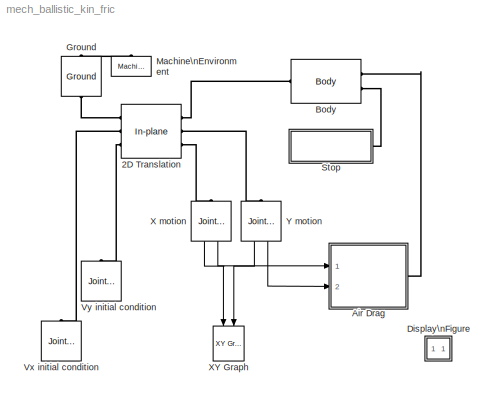
MODEL mech_ballistic_kin_fric
KIND model
BLOCK [Reference] 2D Translation  REF=mblibv1/Joints/In-plane
  ClassName = InplaneJoint
  CutJoint = off
  DialogClass = JointBlock
  LConnTagsString = __newl0|SA1|SA2
  LeftPortType = blob
  MarkAsCut = off
  NumSAPorts = 4
  PhysicalDomain = mechanical
  Ports = [0, 0, 0, 0, 0, 3, 3]
  PrimitiveProps = P1$WORLD$[1 0 0]$prismatic#P2$WORLD$[0 1 0]$prismatic
  Primitives = prismatic_prismatic
  RConnTagsString = __newr0|SA1|SA2
  RightPortType = blob
  SourceBlock = mblibv1/Joints/In-plane
  SourceType = msb
  SubClassName = Unknown
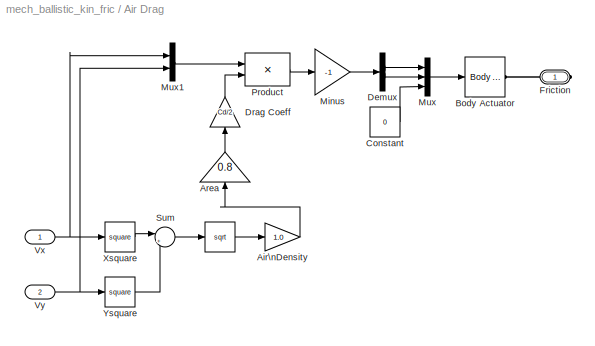
BLOCK [SubSystem] Air Drag
  MaskDescription = Models aerodynamic drag.  The drag coefficient Cd is a mask block parameter.  Cd = 0 corresponds to zero drag.  Cd = 2 corresponds to a sphere.
  MaskEnableString = on
  MaskHelp = Enter aerodynamic drag coefficient Cd.  The block generates a three-vector of air friction as a function of 2D input velocity.
  MaskIconFrame = on
  MaskIconOpaque = on
  MaskIconRotate = none
  MaskIconUnits = autoscale
  MaskInitialization = 0;
  MaskPromptString = Drag Coefficient
  MaskStyleString = edit
  MaskToolTipString = on
  MaskTunableValueString = off
  MaskType = Air friction model
  MaskValueString = 0
  MaskVariables = Cd=@1;
  MaskVisibilityString = on
  MinAlgLoopOccurrences = off
  Ports = [2, 0, 0, 0, 0, 0, 1]
  RTWSystemCode = Auto
  TreatAsAtomicUnit = off
BLOCK [Math] Air Drag/ 
  Operator = sqrt
  Ports = [1, 1]
BLOCK [Gain] Air Drag/Air\nDensity
  Gain = 1.0
BLOCK [Gain] Air Drag/Area
  Gain = 0.8
BLOCK [Reference] Air Drag/Body Actuator  REF=mblibv1/Sensors & \nActuators/Body Actuator
  AccelerationUnits = m/s^2
  ActiveIO = on
  ActuationStyle = Force
  Angle = off
  AngleUnits = deg
  ArcAccelerationUnits = deg/s^2
  ArcVelocityUnits = deg/s
  ClassName = BodyActuatorForceTorque
  CoordPosition = on
  CoordPositionUnits = m
  DialogClass = MechanicalActuatorBlock
  Force = on
  ForceUnits = N
  Opaque = on
  PhysicalDomain = Mechanical
  PortType = blob
  Ports = [1, 0, 0, 0, 0, 0, 1]
  ReferenceFrame = Absolute (World)
  ShowPortLabels = on
  SourceBlock = mblibv1/Sensors & \nActuators/Body Actuator
  SourceType = msb
  Torque = off
  TorqueUnits = N-m
  VelocityUnits = m/s
  Width = 3
BLOCK [Constant] Air Drag/Constant
  Value = 0
BLOCK [Demux] Air Drag/Demux
  Outputs = 2
  Ports = [1, 2]
BLOCK [Gain] Air Drag/Drag Coeff
  Gain = Cd/2
BLOCK [PMIOPort] Air Drag/Friction
  Port = 1
  Side = Right
BLOCK [Gain] Air Drag/Minus
  Gain = -1
BLOCK [Mux] Air Drag/Mux
  DisplayOption = bar
  Inputs = 3
  Ports = [3, 1]
BLOCK [Mux] Air Drag/Mux1
  DisplayOption = bar
  Inputs = 2
  Ports = [2, 1]
BLOCK [Product] Air Drag/Product
  InputSameDT = off
  Ports = [2, 1]
  RndMeth = Floor
BLOCK [Sum] Air Drag/Sum
  IconShape = round
  InputSameDT = off
  Inputs = |++
  OutDataTypeMode = Inherit via internal rule
  Ports = [2, 1]
BLOCK [Inport] Air Drag/Vx
  IconDisplay = Port number
  LatchInput = off
  Port = 1
BLOCK [Inport] Air Drag/Vy
  IconDisplay = Port number
  LatchInput = off
  Port = 2
BLOCK [Math] Air Drag/Xsquare
  Operator = square
  Ports = [1, 1]
BLOCK [Math] Air Drag/Ysquare
  Operator = square
  Ports = [1, 1]
BLOCK [Reference] Body  REF=mblibv1/Bodies/Body
  CG = Right$CG$[0 0 0]$WORLD$WORLD$m$[0 0 0]$Euler X-Y-Z$deg$WORLD$true
  ClassName = Body
  Density = 1
  DensityUnits = kg/m^3
  DensityUse = false
  DialogClass = MechanicalBodyBlock
  Inertia = eye(3)*10
  InertiaUnits = kg*m^2
  LConnTagsString = CS1
  LeftPortType = workingframe
  Mass = 100
  MassUnits = kg
  PhysicalDomain = mechanical
  Ports = [0, 0, 0, 0, 0, 1, 2]
  RConnTagsString = CS2|CG
  RightPortType = workingframe
  Shape = Cylinder
  ShapeDims = [1 1]
  ShapeUnits = m
  ShapeUse = false
  SourceBlock = mblibv1/Bodies/Body
  SourceType = msb
  SubClassName = Unknown
  WorkingFrames = Left$CS1$[0 0 0]$WORLD$CG$m$[0 0 0]$Euler X-Y-Z$deg$WORLD$true#Right$CS2$[0 0 0]$WORLD$CG$m$[0 0 0]$Euler X-Y-Z$deg$WORLD$true
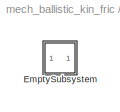
BLOCK [SubSystem] Display\nFigure
  Description = Help callback for ballistic kinetic friction model: mech_ballistic_kin_fric.  Opens Help browser to Type 19 marker at documentation for this tutorial model.
  MaskDisplay = image(imread('info.bmp'))
  MaskIconFrame = off
  MaskIconOpaque = on
  MaskIconRotate = none
  MaskIconUnits = normalized
  MaskSelfModifiable = on
  MaskType = Help callback
  MinAlgLoopOccurrences = off
  OpenFcn = pmhelpview([docroot '/toolbox/physmod/mech/mech.map'], 'mech_ballistic_kin_fric_help');
  Ports = []
  RTWSystemCode = Auto
  Tag = Help
  TreatAsAtomicUnit = off
BLOCK [SubSystem] Display\nFigure/EmptySubsystem
  MinAlgLoopOccurrences = off
  Ports = []
  RTWSystemCode = Auto
  TreatAsAtomicUnit = off
BLOCK [Reference] Ground  REF=mblibv1/Bodies/Ground
  ClassName = Ground
  CoordPosition = [0 0 0]
  CoordPositionUnits = m
  DialogClass = GroundBlock
  LeftPortType = env
  MachineId = [0 0]
  Opaque = on
  PhysicalDomain = Mechanical
  Ports = [0, 0, 0, 0, 0, 1, 1]
  RightPortType = workingframe
  ShowEnvPort = on
  ShowPortLabels = on
  SourceBlock = mblibv1/Bodies/Ground
  SourceType = msb
  StateVectorMgrId = -1
  UserData = DataTag0
  UserDataPersistent = on
BLOCK [Reference] Machine\nEnvironment  REF=mblibv1/Bodies/Machine\nEnvironment
  AnalysisType = Forward dynamics
  AngularAssemblyTolerance = 1e-3
  AngularAssemblyToleranceUnits = rad
  ClassName = Environment
  ConstraintAbsTolerance = 1e-4
  ConstraintRelTolerance = 1e-4
  ConstraintSolverType = Stabilizing
  DialogController = MECH.DialogSource
  DialogTemplateClass = MECH.MachineEnvironment
  Dimensionality = 3D Only
  Gravity = [0 -9.81 0]
  GravityAsSignal = off
  GravityUnits = m/s^2
  LinearAssemblyTolerance = 1e-3
  LinearAssemblyToleranceUnits = m
  Opaque = on
  PerturbationSize = 1e-5
  PhysicalDomain = Mechanical
  PortType = env
  Ports = [0, 0, 0, 0, 0, 0, 1]
  ShowPortLabels = on
  SourceBlock = mblibv1/Bodies/Machine\nEnvironment
  SourceType = Mechanical
  StatePerturbationType = Fixed
  SyncWhenCopied = off
  Tag = Factory ground
  UseRobustSingularityHandling = off
  VisualizeMachine = on
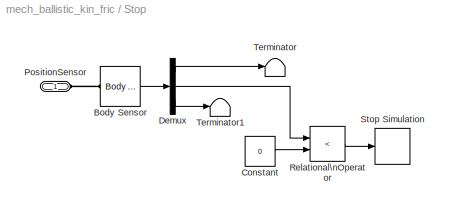
BLOCK [SubSystem] Stop
  MinAlgLoopOccurrences = off
  Ports = [0, 0, 0, 0, 0, 1]
  RTWSystemCode = Auto
  TreatAsAtomicUnit = off
BLOCK [Reference] Stop/Body Sensor  REF=mblibv1/Sensors & \nActuators/Body Sensor
  Acceleration = off
  AccelerationUnits = m/s^2
  ActiveIO = on
  Angle = on
  AngleUnits = deg
  ArcAcceleration = off
  ArcAccelerationUnits = deg/s^2
  ArcVelocity = off
  ArcVelocityUnits = deg/s
  ClassName = BodySensor
  CoordPosition = on
  CoordPositionUnits = m
  DialogClass = MechanicalSensorBlock
  Muxed = on
  Opaque = on
  OutputVector = [ 3 ]
  PhysicalDomain = Mechanical
  PortType = blob
  Ports = [0, 1, 0, 0, 0, 1]
  Pose = off
  Quaternion = on
  QuaternionDDT = off
  QuaternionDT = off
  QuaternionUnits = off
  ReferenceFrame = Absolute (World)
  ShowPortLabels = on
  SourceBlock = mblibv1/Sensors & \nActuators/Body Sensor
  SourceType = msb
  Velocity = off
  VelocityUnits = m/s
  Width = 3
BLOCK [Constant] Stop/Constant
  Value = 0
BLOCK [Demux] Stop/Demux
  Outputs = 3
  Ports = [1, 3]
BLOCK [PMIOPort] Stop/PositionSensor
  Port = 1
  Side = Left
BLOCK [RelationalOperator] Stop/Relational\nOperator
  InputSameDT = off
  Operator = <
BLOCK [Stop] Stop/Stop Simulation
BLOCK [Terminator] Stop/Terminator
BLOCK [Terminator] Stop/Terminator1
BLOCK [Reference] Vx initial condition  REF=mblibv1/Sensors & \nActuators/Joint Initial Condition
  AngleUnits = deg
  ArcVelocityUnits = deg/s
  ClassName = InitialCondition
  CoordPosition = 0.0
  CoordPositionUnits = m
  DialogClass = InitialConditionBlock
  InitialConditions = P1$true$0.0$m$deg$98.0$m/s$deg/s#P2$false$0$m$rad$0$m/s$rad/s#P3$false$0$m$rad$0$m/s$rad/s#R1$false$0$m$rad$0$m/s$rad/s#R2$false$0$m$rad$0$m/s$rad/s#R3$false$0$m$rad$0$m/s$rad/s#S$false$0$m$rad$0$m/s$rad/s
  Opaque = on
  PhysicalDomain = Mechanical
  Ports = [0, 0, 0, 0, 0, 0, 1]
  Primitive = P1
  ShowPortLabels = on
  SourceBlock = mblibv1/Sensors & \nActuators/Joint Initial Condition
  SourceType = msb
  Velocity = 98.0
  VelocityUnits = m/s
BLOCK [Reference] Vy initial condition  REF=mblibv1/Sensors & \nActuators/Joint Initial Condition
  AngleUnits = deg
  ArcVelocityUnits = deg/s
  ClassName = InitialCondition
  CoordPosition = 0.0
  CoordPositionUnits = m
  DialogClass = InitialConditionBlock
  InitialConditions = P1$false$0$m$rad$0$m/s$rad/s#P2$true$0.0$m$deg$69.0$m/s$deg/s#P3$false$0$m$rad$0$m/s$rad/s#R1$false$0$m$rad$0$m/s$rad/s#R2$false$0$m$rad$0$m/s$rad/s#R3$false$0$m$rad$0$m/s$rad/s#S$false$0$m$rad$0$m/s$rad/s
  Opaque = on
  PhysicalDomain = Mechanical
  Ports = [0, 0, 0, 0, 0, 0, 1]
  Primitive = P2
  ShowPortLabels = on
  SourceBlock = mblibv1/Sensors & \nActuators/Joint Initial Condition
  SourceType = msb
  Velocity = 69.0
  VelocityUnits = m/s
BLOCK [Reference] X motion  REF=mblibv1/Sensors & \nActuators/Joint Sensor
  Acceleration = off
  AccelerationUnits = m/s^2
  ActiveIO = on
  Angle = on
  AngleUnits = deg
  ArcAcceleration = off
  ArcAccelerationUnits = deg/s^2
  ArcVelocity = off
  ArcVelocityUnits = deg/s
  ClassName = JointSensor
  CoordPosition = on
  CoordPositionUnits = m
  DialogClass = MechanicalSensorBlock
  Force = off
  ForceUnits = N
  Muxed = off
  Opaque = on
  OutputVector = [ 1 1 ]
  PhysicalDomain = Mechanical
  PortType = blob
  Ports = [0, 2, 0, 0, 0, 1]
  Pose = off
  Primitive = P1
  Quaternion = on
  QuaternionDDT = off
  QuaternionDT = off
  QuaternionUnits = off
  ReactionForce = off
  ReactionForceUnits = N
  ReactionMoment = off
  ReactionMomentUnits = N-m
  ReactionReferenceFrame = Absolute (World)
  ReactionSensedSide = Base
  ReferenceFrame = Absolute (INERTIAL)
  ShowPortLabels = on
  SourceBlock = mblibv1/Sensors & \nActuators/Joint Sensor
  SourceType = msb
  Torque = off
  TorqueUnits = N-m
  Velocity = on
  VelocityUnits = m/s
  Width = 2
BLOCK [Reference] XY Graph  REF=simulink/Sinks/XY Graph
  Ports = [2]
  ShowPortLabels = on
  SourceBlock = simulink/Sinks/XY Graph
  SourceType = XY scope.
  st = -1
  xmax = 1500
  xmin = 0
  ymax = 400
  ymin = 0
BLOCK [Reference] Y motion  REF=mblibv1/Sensors & \nActuators/Joint Sensor
  Acceleration = off
  AccelerationUnits = m/s^2
  ActiveIO = on
  Angle = on
  AngleUnits = deg
  ArcAcceleration = off
  ArcAccelerationUnits = deg/s^2
  ArcVelocity = off
  ArcVelocityUnits = deg/s
  ClassName = JointSensor
  CoordPosition = on
  CoordPositionUnits = m
  DialogClass = MechanicalSensorBlock
  Force = off
  ForceUnits = N
  Muxed = off
  Opaque = on
  OutputVector = [ 1 1 ]
  PhysicalDomain = Mechanical
  PortType = blob
  Ports = [0, 2, 0, 0, 0, 1]
  Pose = off
  Primitive = P2
  Quaternion = on
  QuaternionDDT = off
  QuaternionDT = off
  QuaternionUnits = off
  ReactionForce = off
  ReactionForceUnits = N
  ReactionMoment = off
  ReactionMomentUnits = N-m
  ReactionReferenceFrame = Absolute (World)
  ReactionSensedSide = Base
  ReferenceFrame = Absolute (INERTIAL)
  ShowPortLabels = on
  SourceBlock = mblibv1/Sensors & \nActuators/Joint Sensor
  SourceType = msb
  Torque = off
  TorqueUnits = N-m
  Velocity = on
  VelocityUnits = m/s
  Width = 2
LINE Air Drag/ :1 -> Air Drag/Air\nDensity:1
LINE Air Drag/Air\nDensity:1 -> Air Drag/Area:1
LINE Air Drag/Area:1 -> Air Drag/Drag Coeff:1
LINE Air Drag/Constant:1 -> Air Drag/Mux:3
LINE Air Drag/Demux:1 -> Air Drag/Mux:1
LINE Air Drag/Demux:2 -> Air Drag/Mux:2
LINE Air Drag/Drag Coeff:1 -> Air Drag/Product:2
LINE Air Drag/Minus:1 -> Air Drag/Demux:1
LINE Air Drag/Mux1:1 -> Air Drag/Product:1
LINE Air Drag/Mux:1 -> Air Drag/Body Actuator:1
LINE Air Drag/Product:1 -> Air Drag/Minus:1
LINE Air Drag/Sum:1 -> Air Drag/ :1
NET Air Drag/Vx:1 -> Air Drag/Mux1:1, Air Drag/Xsquare:1
NET Air Drag/Vy:1 -> Air Drag/Mux1:2, Air Drag/Ysquare:1
LINE Air Drag/Xsquare:1 -> Air Drag/Sum:1
LINE Air Drag/Ysquare:1 -> Air Drag/Sum:2
LINE Stop/Body Sensor:1 -> Stop/Demux:1
LINE Stop/Constant:1 -> Stop/Relational\nOperator:2
LINE Stop/Demux:1 -> Stop/Terminator:1
LINE Stop/Demux:2 -> Stop/Relational\nOperator:1
LINE Stop/Demux:3 -> Stop/Terminator1:1
LINE Stop/Relational\nOperator:1 -> Stop/Stop Simulation:1
LINE X motion:1 -> XY Graph:1
LINE X motion:2 -> Air Drag:1
LINE Y motion:1 -> XY Graph:2
LINE Y motion:2 -> Air Drag:2
PLINE 2D Translation:LConn1 -- Ground:RConn1
PLINE 2D Translation:LConn2 -- Vx initial condition:RConn1
PLINE 2D Translation:LConn3 -- Vy initial condition:RConn1
PLINE 2D Translation:RConn1 -- Body:LConn1
PLINE 2D Translation:RConn2 -- Y motion:LConn1
PLINE 2D Translation:RConn3 -- X motion:LConn1
PLINE Air Drag/Body Actuator:RConn1 -- Air Drag/Friction:RConn1
PLINE Air Drag:RConn1 -- Body:RConn1
PLINE Body:RConn2 -- Stop:LConn1
PLINE Ground:LConn1 -- Machine\nEnvironment:RConn1
PLINE Stop/Body Sensor:LConn1 -- Stop/PositionSensor:RConn1
note: NET lines group one-source signal fan-out (src -> all destinations, sorted); 1:1 wires keep LINE
